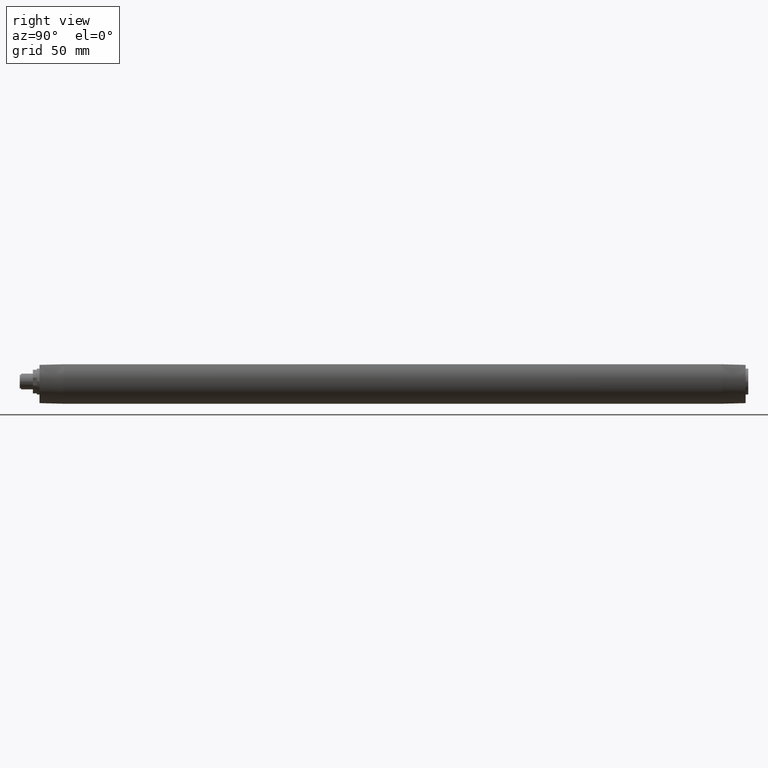
[diagram: clean part render]
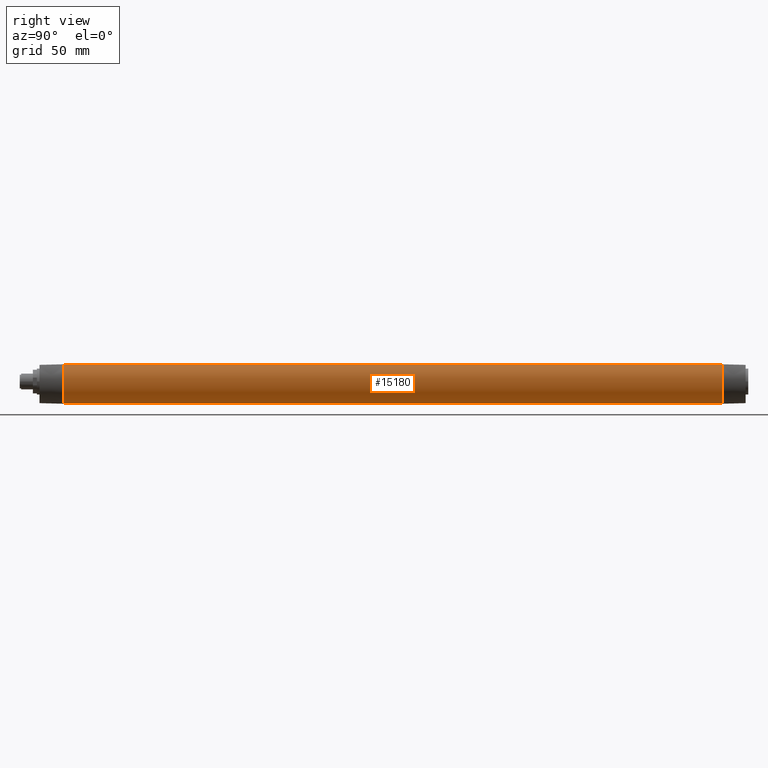
[diagram: same view with one face highlighted and labeled with its STEP entity id]
A machine part, right view. The second image highlights one B-rep face of the part: STEP entity #15180.
In plain terms, the highlighted cylindrical surface (edge-blend (fillet) strip) has radius 20 mm, axis along (0, 1, -0).
Its self-contained STEP definition (entity closure, byte-faithful):
#13480=CARTESIAN_POINT('',(-6.95970545353751,-18.75,-75.));
#13490=VERTEX_POINT('',#13480);
#13740=CARTESIAN_POINT('',(-6.95970545353749,-18.75,-75.5000000002358));
#13750=DIRECTION('',(0.,0.,1.));
#13760=VECTOR('',#13750,1.);
#13770=LINE('',#13740,#13760);
#13780=CARTESIAN_POINT('',(-6.95970545353913,-18.75,424.999999999989));
#13790=VERTEX_POINT('',#13780);
#13800=EDGE_CURVE('',#13490,#13790,#13770,.T.);
#14660=CARTESIAN_POINT('',(-16.5698521417666,11.2,-75.0000000000001));
#14670=VERTEX_POINT('',#14660);
#14750=CARTESIAN_POINT('',(-16.5698521417667,11.2,424.999999999989));
#14760=VERTEX_POINT('',#14750);
#14790=CARTESIAN_POINT('',(-16.5698521417664,11.2,-75.5000000002358));
#14800=DIRECTION('',(0.,0.,-1.));
#14810=VECTOR('',#14800,1.);
#14820=LINE('',#14790,#14810);
#14830=EDGE_CURVE('',#14760,#14670,#14820,.T.);
#14950=CARTESIAN_POINT('',(5.32907051820075E-15,1.19904086659517E-14,
-75.5000000002358));
#14960=DIRECTION('',(0.,0.,1.));
#14970=DIRECTION('',(1.,0.,0.));
#14980=AXIS2_PLACEMENT_3D('',#14950,#14960,#14970);
#14990=CYLINDRICAL_SURFACE('',#14980,20.);
#15000=ORIENTED_EDGE('',*,*,#14830,.T.);
#15010=CARTESIAN_POINT('',(2.20085071500134E-13,-9.00394217434873E-15,
424.999999999989));
#15020=DIRECTION('',(-6.86924452968795E-15,1.16626265454226E-15,1.));
#15030=DIRECTION('',(1.,8.01134335989377E-30,6.86924452968795E-15));
#15040=AXIS2_PLACEMENT_3D('',#15010,#15020,#15030);
#15050=CIRCLE('',#15040,20.0000000000003);
#15060=EDGE_CURVE('',#14760,#13790,#15050,.T.);
#15070=ORIENTED_EDGE('',*,*,#15060,.F.);
#15080=ORIENTED_EDGE('',*,*,#13800,.T.);
#15090=CARTESIAN_POINT('',(5.19843624293478E-14,1.14904835442307E-13,
-75.0000000000696));
#15100=DIRECTION('',(-2.05412229808596E-15,-4.31318083550774E-15,-1.));
#15110=DIRECTION('',(1.,-8.8598009298935E-30,-2.05412229808596E-15));
#15120=AXIS2_PLACEMENT_3D('',#15090,#15100,#15110);
#15130=CIRCLE('',#15120,19.9999999999992);
#15140=EDGE_CURVE('',#13490,#14670,#15130,.T.);
#15150=ORIENTED_EDGE('',*,*,#15140,.F.);
#15160=EDGE_LOOP('',(#15150,#15080,#15070,#15000));
#15170=FACE_OUTER_BOUND('',#15160,.T.);
#15180=ADVANCED_FACE('',(#15170),#14990,.T.);